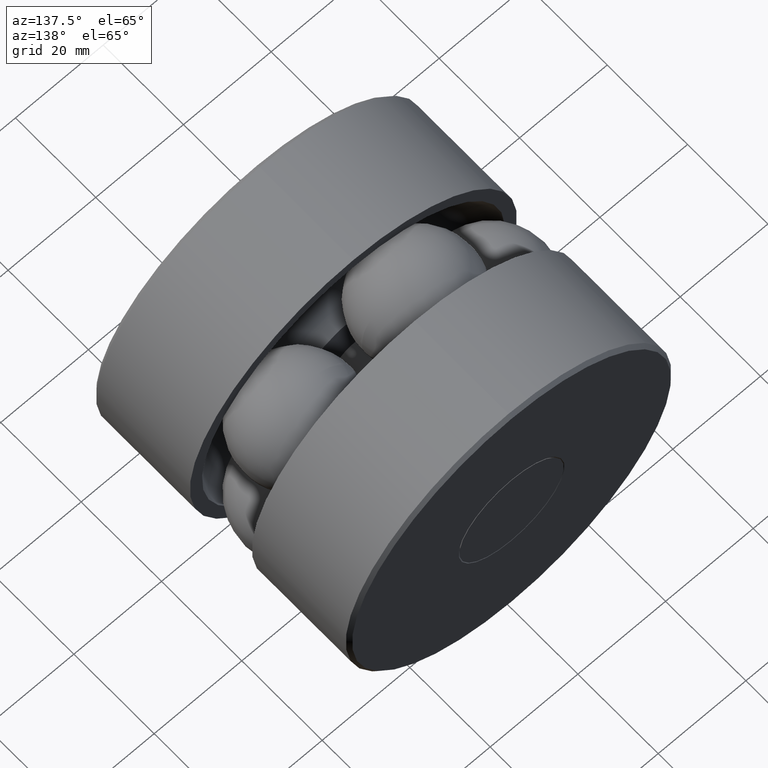
[diagram: clean part render]
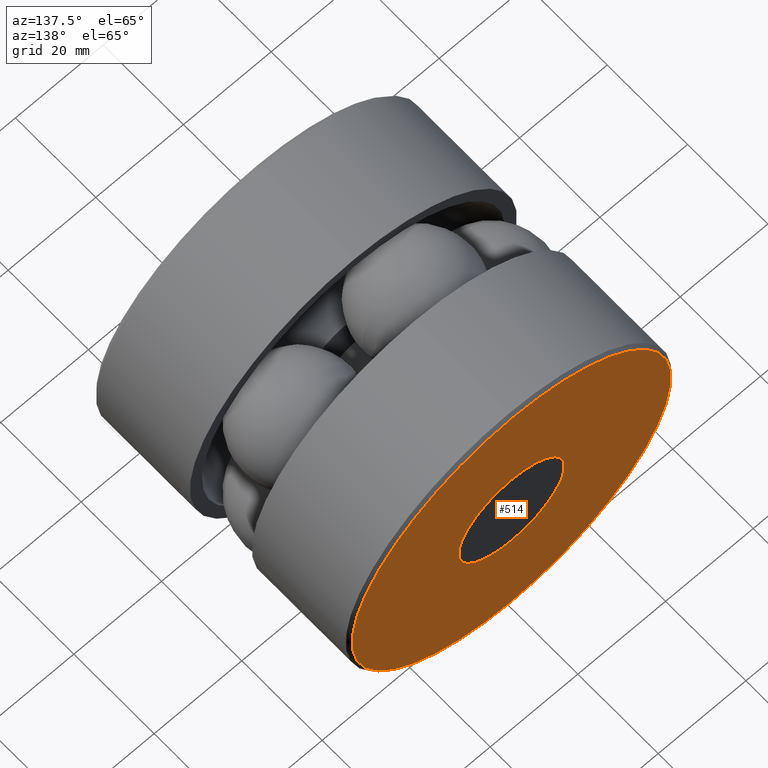
[diagram: same view with one face highlighted and labeled with its STEP entity id]
A machine part, auxiliary view. The second image highlights one B-rep face of the part: STEP entity #514.
In plain terms, the highlighted planar face has unit normal (-0, 1, 0).
Its self-contained STEP definition (entity closure, byte-faithful):
#15 = ORIENTED_EDGE ( 'NONE', *, *, #539, .T. ) ;
#24 = CARTESIAN_POINT ( 'NONE',  ( -0.4755710678118621500, 2.500000000000000000, 0.0000000000000000000 ) ) ;
#35 = CARTESIAN_POINT ( 'NONE',  ( 0.0000000000000000000, 2.500000000000000000, 0.0000000000000000000 ) ) ;
#83 = EDGE_CURVE ( 'NONE', #364, #364, #397, .T. ) ;
#95 = VERTEX_POINT ( 'NONE', #460 ) ;
#148 = ORIENTED_EDGE ( 'NONE', *, *, #83, .F. ) ;
#183 = FACE_BOUND ( 'NONE', #384, .T. ) ;
#191 = CARTESIAN_POINT ( 'NONE',  ( 0.0000000000000000000, 2.500000000000000000, 0.4755710678118621500 ) ) ;
#230 = DIRECTION ( 'NONE',  ( -0.0000000000000000000, 1.000000000000000000, 0.0000000000000000000 ) ) ;
#364 = VERTEX_POINT ( 'NONE', #191 ) ;
#380 = CIRCLE ( 'NONE', #530, 1.432000000000000400 ) ;
#384 = EDGE_LOOP ( 'NONE', ( #148 ) ) ;
#397 = CIRCLE ( 'NONE', #399, 0.4755710678118621500 ) ;
#399 = AXIS2_PLACEMENT_3D ( 'NONE', #35, #529, #485 ) ;
#412 = FACE_OUTER_BOUND ( 'NONE', #423, .T. ) ;
#423 = EDGE_LOOP ( 'NONE', ( #15 ) ) ;
#436 = CARTESIAN_POINT ( 'NONE',  ( 0.0000000000000000000, 2.500000000000000000, 0.0000000000000000000 ) ) ;
#445 = AXIS2_PLACEMENT_3D ( 'NONE', #24, #230, #457 ) ;
#457 = DIRECTION ( 'NONE',  ( 0.0000000000000000000, 0.0000000000000000000, 1.000000000000000000 ) ) ;
#460 = CARTESIAN_POINT ( 'NONE',  ( 0.0000000000000000000, 2.500000000000000000, 1.432000000000000400 ) ) ;
#485 = DIRECTION ( 'NONE',  ( 0.0000000000000000000, 0.0000000000000000000, 1.000000000000000000 ) ) ;
#501 = DIRECTION ( 'NONE',  ( -0.0000000000000000000, 1.000000000000000000, -0.0000000000000000000 ) ) ;
#514 = ADVANCED_FACE ( 'NONE', ( #412, #183 ), #535, .T. ) ;
#524 = DIRECTION ( 'NONE',  ( 0.0000000000000000000, 0.0000000000000000000, 1.000000000000000000 ) ) ;
#529 = DIRECTION ( 'NONE',  ( -0.0000000000000000000, 1.000000000000000000, -0.0000000000000000000 ) ) ;
#530 = AXIS2_PLACEMENT_3D ( 'NONE', #436, #501, #524 ) ;
#535 = PLANE ( 'NONE',  #445 ) ;
#539 = EDGE_CURVE ( 'NONE', #95, #95, #380, .T. ) ;